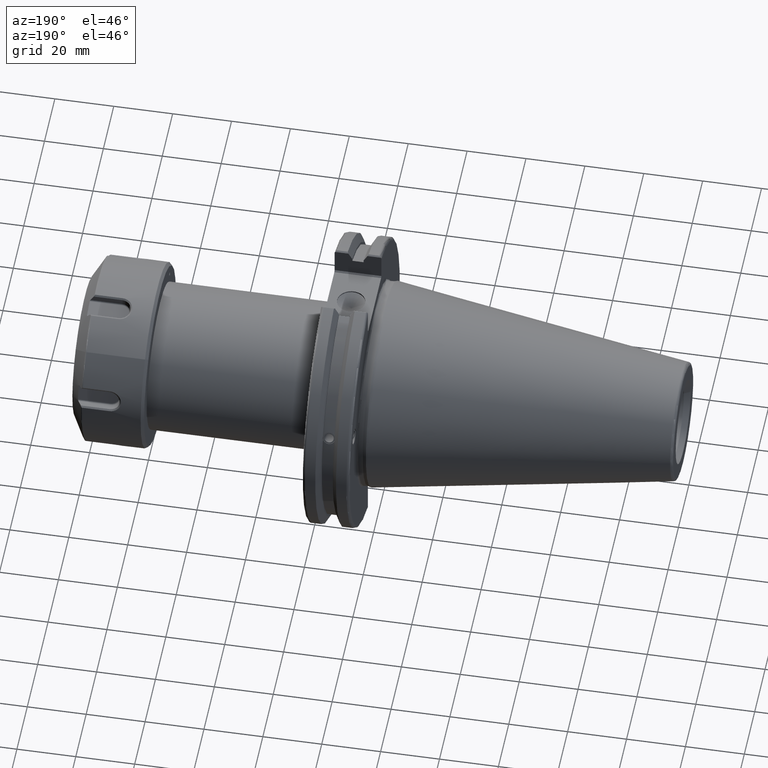
[diagram: clean part render]
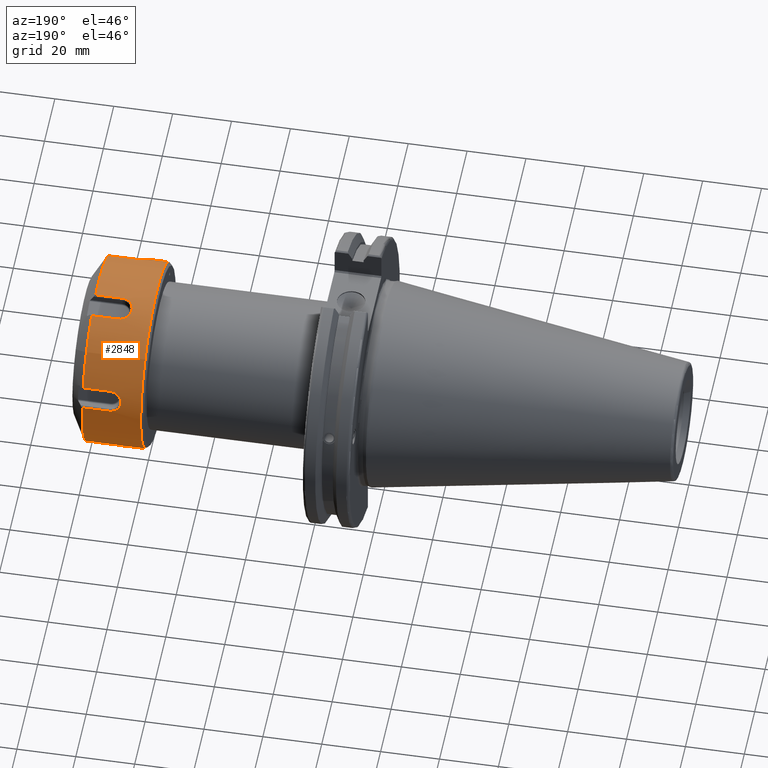
[diagram: same view with one face highlighted and labeled with its STEP entity id]
A machine part, auxiliary view. The second image highlights one B-rep face of the part: STEP entity #2848.
In plain terms, the highlighted cylindrical surface (bore or boss wall) has radius 31.5 mm, axis along (1, 0, 0).
Its self-contained STEP definition (entity closure, byte-faithful):
#210=B_SPLINE_CURVE_WITH_KNOTS('',3,(#5036,#5037,#5038,#5039,#5040,#5041,
#5042,#5043,#5044,#5045,#5046,#5047,#5048,#5049,#5050,#5051,#5052,#5053,
#5054,#5055,#5056,#5057,#5058,#5059,#5060,#5061),.UNSPECIFIED.,.F.,.F.,
(4,2,2,2,2,2,2,2,2,2,2,2,4),(9.99999971371124E-7,0.0790892716498988,0.158925057526417,
0.327320955720377,0.511749066146117,0.603258202720483,0.694520005154169,
0.78577970515199,0.969580047950711,1.06170032889159,1.22792222862123,1.306087413036,
1.38257736498177),.UNSPECIFIED.);
#211=B_SPLINE_CURVE_WITH_KNOTS('',3,(#5069,#5070,#5071,#5072,#5073,#5074,
#5075,#5076,#5077,#5078,#5079,#5080,#5081,#5082,#5083,#5084,#5085,#5086,
#5087,#5088,#5089,#5090,#5091,#5092,#5093,#5094),.UNSPECIFIED.,.F.,.F.,
(4,2,2,2,2,2,2,2,2,2,2,2,4),(9.99999971273979E-7,0.0790859424957346,0.158921752622306,
0.327374722317129,0.511941391695769,0.603518748406338,0.69484873594806,
0.786178380455919,0.970120144784931,1.06230768564658,1.22875398375362,1.30707627294481,
1.38371291360716),.UNSPECIFIED.);
#212=B_SPLINE_CURVE_WITH_KNOTS('',3,(#5102,#5103,#5104,#5105,#5106,#5107,
#5108,#5109,#5110,#5111,#5112,#5113,#5114,#5115,#5116,#5117,#5118,#5119,
#5120,#5121,#5122,#5123,#5124,#5125,#5126,#5127),.UNSPECIFIED.,.F.,.F.,
(4,2,2,2,2,2,2,2,2,2,2,2,4),(9.99999971745824E-7,0.0790910473113207,0.15892409060742,
0.327191213773472,0.511303857617428,0.602656424686424,0.693760203452381,
0.784865759519783,0.96835460341659,1.06031580501585,1.22632949880772,1.30443974777337,
1.38087021878127),.UNSPECIFIED.);
#213=B_SPLINE_CURVE_WITH_KNOTS('',3,(#5135,#5136,#5137,#5138,#5139,#5140,
#5141,#5142,#5143,#5144,#5145,#5146,#5147,#5148,#5149,#5150,#5151,#5152,
#5153,#5154,#5155,#5156,#5157,#5158,#5159,#5160),.UNSPECIFIED.,.F.,.F.,
(4,2,2,2,2,2,2,2,2,2,2,2,4),(9.99999971343368E-7,0.0790892715235611,0.158925057517087,
0.327320960190768,0.511749081388466,0.603258223298337,0.694520031046864,
0.785779736358307,0.969580089940763,1.06170037626348,1.22792229096968,1.30608748469934,
1.38257744559039),.UNSPECIFIED.);
#214=B_SPLINE_CURVE_WITH_KNOTS('',3,(#5168,#5169,#5170,#5171,#5172,#5173,
#5174,#5175,#5176,#5177,#5178,#5179,#5180,#5181,#5182,#5183,#5184,#5185,
#5186,#5187,#5188,#5189,#5190,#5191,#5192,#5193),.UNSPECIFIED.,.F.,.F.,
(4,2,2,2,2,2,2,2,2,2,2,2,4),(9.99999971273979E-7,0.0790859424954708,0.158921752623183,
0.327374722345528,0.511941391788692,0.603518748531299,0.694848736104086,
0.786178380643015,0.970120145037717,1.06230768593157,1.22875398409821,1.3070762733177,
1.38371291400717),.UNSPECIFIED.);
#215=B_SPLINE_CURVE_WITH_KNOTS('',3,(#5201,#5202,#5203,#5204,#5205,#5206,
#5207,#5208,#5209,#5210,#5211,#5212,#5213,#5214,#5215,#5216,#5217,#5218,
#5219,#5220,#5221,#5222,#5223,#5224,#5225,#5226),.UNSPECIFIED.,.F.,.F.,
(4,2,2,2,2,2,2,2,2,2,2,2,4),(9.9999997177358E-7,0.0790910474280395,0.158924090605838,
0.327191209413021,0.511303842778269,0.602656404659507,0.69376017826091,
0.78486572916392,0.96835456256609,1.06031575893471,1.22632943786091,1.304439677498,
1.38087013955283),.UNSPECIFIED.);
#302=CYLINDRICAL_SURFACE('',#3171,31.5);
#407=FACE_OUTER_BOUND('',#597,.T.);
#597=EDGE_LOOP('',(#2328,#2329,#2330,#2331,#2332,#2333,#2334,#2335,#2336,
#2337,#2338,#2339,#2340,#2341,#2342,#2343,#2344,#2345,#2346,#2347,#2348,
#2349,#2350,#2351,#2352,#2353,#2354,#2355));
#777=LINE('',#5030,#953);
#778=LINE('',#5034,#954);
#779=LINE('',#5063,#955);
#780=LINE('',#5067,#956);
#781=LINE('',#5096,#957);
#782=LINE('',#5100,#958);
#783=LINE('',#5129,#959);
#784=LINE('',#5133,#960);
#785=LINE('',#5162,#961);
#786=LINE('',#5166,#962);
#787=LINE('',#5195,#963);
#788=LINE('',#5199,#964);
#789=LINE('',#5227,#965);
#953=VECTOR('',#3741,31.5);
#954=VECTOR('',#3744,9.08119811233);
#955=VECTOR('',#3745,9.081198314838);
#956=VECTOR('',#3748,9.081198109364);
#957=VECTOR('',#3749,9.081198356029);
#958=VECTOR('',#3752,9.081198093953);
#959=VECTOR('',#3753,9.081198366633);
#960=VECTOR('',#3756,9.081198112329);
#961=VECTOR('',#3757,9.081198314838);
#962=VECTOR('',#3760,9.081198109364);
#963=VECTOR('',#3761,9.081198356028);
#964=VECTOR('',#3764,9.081198093954);
#965=VECTOR('',#3765,9.081198366634);
#1112=CIRCLE('',#3170,31.5);
#1113=CIRCLE('',#3172,31.5);
#1114=CIRCLE('',#3173,31.5);
#1115=CIRCLE('',#3174,31.5);
#1116=CIRCLE('',#3175,31.5);
#1117=CIRCLE('',#3176,31.5);
#1118=CIRCLE('',#3177,31.5);
#1119=CIRCLE('',#3178,31.5);
#1319=VERTEX_POINT('',#5023);
#1320=VERTEX_POINT('',#5027);
#1321=VERTEX_POINT('',#5028);
#1322=VERTEX_POINT('',#5031);
#1323=VERTEX_POINT('',#5033);
#1324=VERTEX_POINT('',#5035);
#1325=VERTEX_POINT('',#5062);
#1326=VERTEX_POINT('',#5064);
#1327=VERTEX_POINT('',#5066);
#1328=VERTEX_POINT('',#5068);
#1329=VERTEX_POINT('',#5095);
#1330=VERTEX_POINT('',#5097);
#1331=VERTEX_POINT('',#5099);
#1332=VERTEX_POINT('',#5101);
#1333=VERTEX_POINT('',#5128);
#1334=VERTEX_POINT('',#5130);
#1335=VERTEX_POINT('',#5132);
#1336=VERTEX_POINT('',#5134);
#1337=VERTEX_POINT('',#5161);
#1338=VERTEX_POINT('',#5163);
#1339=VERTEX_POINT('',#5165);
#1340=VERTEX_POINT('',#5167);
#1341=VERTEX_POINT('',#5194);
#1342=VERTEX_POINT('',#5196);
#1343=VERTEX_POINT('',#5198);
#1344=VERTEX_POINT('',#5200);
#1671=EDGE_CURVE('',#1319,#1319,#1112,.T.);
#1673=EDGE_CURVE('',#1320,#1321,#1113,.T.);
#1674=EDGE_CURVE('',#1321,#1319,#777,.T.);
#1675=EDGE_CURVE('',#1321,#1322,#1114,.T.);
#1676=EDGE_CURVE('',#1322,#1323,#778,.T.);
#1677=EDGE_CURVE('',#1323,#1324,#210,.T.);
#1678=EDGE_CURVE('',#1324,#1325,#779,.T.);
#1679=EDGE_CURVE('',#1325,#1326,#1115,.T.);
#1680=EDGE_CURVE('',#1326,#1327,#780,.T.);
#1681=EDGE_CURVE('',#1327,#1328,#211,.T.);
#1682=EDGE_CURVE('',#1328,#1329,#781,.T.);
#1683=EDGE_CURVE('',#1329,#1330,#1116,.T.);
#1684=EDGE_CURVE('',#1330,#1331,#782,.T.);
#1685=EDGE_CURVE('',#1331,#1332,#212,.T.);
#1686=EDGE_CURVE('',#1332,#1333,#783,.T.);
#1687=EDGE_CURVE('',#1333,#1334,#1117,.T.);
#1688=EDGE_CURVE('',#1334,#1335,#784,.T.);
#1689=EDGE_CURVE('',#1335,#1336,#213,.T.);
#1690=EDGE_CURVE('',#1336,#1337,#785,.T.);
#1691=EDGE_CURVE('',#1337,#1338,#1118,.T.);
#1692=EDGE_CURVE('',#1338,#1339,#786,.T.);
#1693=EDGE_CURVE('',#1339,#1340,#214,.T.);
#1694=EDGE_CURVE('',#1340,#1341,#787,.T.);
#1695=EDGE_CURVE('',#1341,#1342,#1119,.T.);
#1696=EDGE_CURVE('',#1342,#1343,#788,.T.);
#1697=EDGE_CURVE('',#1343,#1344,#215,.T.);
#1698=EDGE_CURVE('',#1344,#1320,#789,.T.);
#2328=ORIENTED_EDGE('',*,*,#1673,.T.);
#2329=ORIENTED_EDGE('',*,*,#1674,.T.);
#2330=ORIENTED_EDGE('',*,*,#1671,.F.);
#2331=ORIENTED_EDGE('',*,*,#1674,.F.);
#2332=ORIENTED_EDGE('',*,*,#1675,.T.);
#2333=ORIENTED_EDGE('',*,*,#1676,.T.);
#2334=ORIENTED_EDGE('',*,*,#1677,.T.);
#2335=ORIENTED_EDGE('',*,*,#1678,.T.);
#2336=ORIENTED_EDGE('',*,*,#1679,.T.);
#2337=ORIENTED_EDGE('',*,*,#1680,.T.);
#2338=ORIENTED_EDGE('',*,*,#1681,.T.);
#2339=ORIENTED_EDGE('',*,*,#1682,.T.);
#2340=ORIENTED_EDGE('',*,*,#1683,.T.);
#2341=ORIENTED_EDGE('',*,*,#1684,.T.);
#2342=ORIENTED_EDGE('',*,*,#1685,.T.);
#2343=ORIENTED_EDGE('',*,*,#1686,.T.);
#2344=ORIENTED_EDGE('',*,*,#1687,.T.);
#2345=ORIENTED_EDGE('',*,*,#1688,.T.);
#2346=ORIENTED_EDGE('',*,*,#1689,.T.);
#2347=ORIENTED_EDGE('',*,*,#1690,.T.);
#2348=ORIENTED_EDGE('',*,*,#1691,.T.);
#2349=ORIENTED_EDGE('',*,*,#1692,.T.);
#2350=ORIENTED_EDGE('',*,*,#1693,.T.);
#2351=ORIENTED_EDGE('',*,*,#1694,.T.);
#2352=ORIENTED_EDGE('',*,*,#1695,.T.);
#2353=ORIENTED_EDGE('',*,*,#1696,.T.);
#2354=ORIENTED_EDGE('',*,*,#1697,.T.);
#2355=ORIENTED_EDGE('',*,*,#1698,.T.);
#2848=ADVANCED_FACE('',(#407),#302,.T.);
#3170=AXIS2_PLACEMENT_3D('',#5024,#3734,#3735);
#3171=AXIS2_PLACEMENT_3D('',#5026,#3737,#3738);
#3172=AXIS2_PLACEMENT_3D('',#5029,#3739,#3740);
#3173=AXIS2_PLACEMENT_3D('',#5032,#3742,#3743);
#3174=AXIS2_PLACEMENT_3D('',#5065,#3746,#3747);
#3175=AXIS2_PLACEMENT_3D('',#5098,#3750,#3751);
#3176=AXIS2_PLACEMENT_3D('',#5131,#3754,#3755);
#3177=AXIS2_PLACEMENT_3D('',#5164,#3758,#3759);
#3178=AXIS2_PLACEMENT_3D('',#5197,#3762,#3763);
#3734=DIRECTION('center_axis',(-1.,0.,0.));
#3735=DIRECTION('ref_axis',(0.,0.,1.));
#3737=DIRECTION('center_axis',(1.,0.,0.));
#3738=DIRECTION('ref_axis',(0.,0.,-1.));
#3739=DIRECTION('center_axis',(-1.,0.,0.));
#3740=DIRECTION('ref_axis',(0.,0.,1.));
#3741=DIRECTION('',(-1.,0.,0.));
#3742=DIRECTION('center_axis',(-1.,0.,0.));
#3743=DIRECTION('ref_axis',(0.,0.,1.));
#3744=DIRECTION('',(-1.,-1.174275161315E-10,2.739140781404E-11));
#3745=DIRECTION('',(1.,-1.994409451836E-10,1.997230122054E-10));
#3746=DIRECTION('center_axis',(-1.,0.,0.));
#3747=DIRECTION('ref_axis',(0.,0.605108164293794,0.796143271971192));
#3748=DIRECTION('',(-1.,-3.464612484009E-11,1.144422415862E-10));
#3749=DIRECTION('',(1.,7.968412888578E-11,2.962451916097E-10));
#3750=DIRECTION('center_axis',(-1.,0.,0.));
#3751=DIRECTION('ref_axis',(0.,0.992034380726012,-0.125967406330202));
#3752=DIRECTION('',(-1.,7.625198965719E-11,8.155140709034E-11));
#3753=DIRECTION('',(1.,3.026827548322E-10,8.081826511913E-11));
#3754=DIRECTION('center_axis',(-1.,0.,0.));
#3755=DIRECTION('ref_axis',(0.,0.,-1.));
#3756=DIRECTION('',(-1.,1.174277117397E-10,-2.739219024685E-11));
#3757=DIRECTION('',(1.,1.994448573476E-10,-1.997253595038E-10));
#3758=DIRECTION('center_axis',(-1.,0.,0.));
#3759=DIRECTION('ref_axis',(0.,-0.605108164293794,-0.796143271971192));
#3760=DIRECTION('',(-1.,3.464612484009E-11,-1.144417525657E-10));
#3761=DIRECTION('',(1.,-7.968412888578E-11,-2.962412305437E-10));
#3762=DIRECTION('center_axis',(-1.,0.,0.));
#3763=DIRECTION('ref_axis',(0.,-0.992034380726012,0.125967406330202));
#3764=DIRECTION('',(-1.,-7.625238087359E-11,-8.155179830674E-11));
#3765=DIRECTION('',(1.,-3.02682559224E-10,-8.081865633552E-11));
#5023=CARTESIAN_POINT('',(-11.75,-3.85763741731416E-15,31.5));
#5024=CARTESIAN_POINT('Origin',(-11.75,0.,0.));
#5026=CARTESIAN_POINT('Origin',(-12.75,0.,0.));
#5027=CARTESIAN_POINT('',(8.131197846484,-12.18817581761,29.04648636649));
#5028=CARTESIAN_POINT('',(8.131197846484,-3.85763741731416E-15,31.5));
#5029=CARTESIAN_POINT('Origin',(8.131197846483,0.,0.));
#5030=CARTESIAN_POINT('',(-12.75,-3.85763741731416E-15,31.5));
#5031=CARTESIAN_POINT('',(8.131197846483,12.18817581761,29.04648636649));
#5032=CARTESIAN_POINT('Origin',(8.131197846483,0.,0.));
#5033=CARTESIAN_POINT('',(-0.9500002658466,12.18817581655,29.04648636674));
#5034=CARTESIAN_POINT('',(8.131197846483,12.18817581761,29.04648636649));
#5035=CARTESIAN_POINT('',(-0.950000468355103,19.0609071770652,25.0785130660353));
#5036=CARTESIAN_POINT('Ctrl Pts',(-0.950000265845668,12.188175816443,29.0464863669855));
#5037=CARTESIAN_POINT('Ctrl Pts',(-1.21362519868797,12.1870128064009,29.0469743768153));
#5038=CARTESIAN_POINT('Ctrl Pts',(-1.47796546976369,12.2125518796473,29.036295255382));
#5039=CARTESIAN_POINT('Ctrl Pts',(-1.99685030548064,12.3116355303517,28.9944227492682));
#5040=CARTESIAN_POINT('Ctrl Pts',(-2.25275399080835,12.3859080845004,28.9629132794371));
#5041=CARTESIAN_POINT('Ctrl Pts',(-3.01321395339289,12.6861946011001,28.8333087600027));
#5042=CARTESIAN_POINT('Ctrl Pts',(-3.4341278435859,12.9711421682301,28.7073963789622));
#5043=CARTESIAN_POINT('Ctrl Pts',(-4.12735075909807,13.6158250000896,28.407699877571));
#5044=CARTESIAN_POINT('Ctrl Pts',(-4.41252138711866,14.0093091182578,28.217367192123));
#5045=CARTESIAN_POINT('Ctrl Pts',(-4.70328851462559,14.6478293365974,27.8881310987876));
#5046=CARTESIAN_POINT('Ctrl Pts',(-4.77666915239765,14.8664403553926,27.7723384273213));
#5047=CARTESIAN_POINT('Ctrl Pts',(-4.87449197736086,15.3093981793318,27.5306340894661));
#5048=CARTESIAN_POINT('Ctrl Pts',(-4.89891323838764,15.5328364164902,27.4052343027573));
#5049=CARTESIAN_POINT('Ctrl Pts',(-4.898139633506,15.9773315054023,27.1484944197986));
#5050=CARTESIAN_POINT('Ctrl Pts',(-4.8729473725177,16.1975762409519,27.0176226804015));
#5051=CARTESIAN_POINT('Ctrl Pts',(-4.72354027238092,16.8453964280965,26.6221681579489));
#5052=CARTESIAN_POINT('Ctrl Pts',(-4.52628024404267,17.2504822090507,26.3601504707982));
#5053=CARTESIAN_POINT('Ctrl Pts',(-4.10011576616989,17.7882739427382,25.9975806811522));
#5054=CARTESIAN_POINT('Ctrl Pts',(-3.93739113876241,17.9544261667734,25.8828666837948));
#5055=CARTESIAN_POINT('Ctrl Pts',(-3.42834371787113,18.3788603619017,25.5847388935114));
#5056=CARTESIAN_POINT('Ctrl Pts',(-3.00737606678997,18.630729518983,25.4006919735331));
#5057=CARTESIAN_POINT('Ctrl Pts',(-2.24275294815319,18.8924220830863,25.2058976286535));
#5058=CARTESIAN_POINT('Ctrl Pts',(-1.98650211713794,18.9562917536797,25.157739378785));
#5059=CARTESIAN_POINT('Ctrl Pts',(-1.47129935370272,19.0405094404626,25.094057607202));
#5060=CARTESIAN_POINT('Ctrl Pts',(-1.20991805855335,19.0621905395021,25.0775376469496));
#5061=CARTESIAN_POINT('Ctrl Pts',(-0.950000468350003,19.0609071775661,25.0785130653356));
#5062=CARTESIAN_POINT('',(8.131197846483,19.06090717525,25.07851306709));
#5063=CARTESIAN_POINT('',(-0.9500004683551,19.06090717707,25.07851306528));
#5064=CARTESIAN_POINT('',(8.131197846483,31.24908299287,3.967973299401));
#5065=CARTESIAN_POINT('Origin',(8.131197846483,0.,0.));
#5066=CARTESIAN_POINT('',(-0.9500002628806,31.24908299255,3.967973300441));
#5067=CARTESIAN_POINT('',(8.131197846483,31.24908299287,3.967973299401));
#5068=CARTESIAN_POINT('',(-0.950000509544297,31.2490829928567,-3.96797330167737));
#5069=CARTESIAN_POINT('Ctrl Pts',(-0.950000262879701,31.2490829927109,3.96797330064941));
#5070=CARTESIAN_POINT('Ctrl Pts',(-1.21361408378754,31.2489237308088,3.96922754003533));
#5071=CARTESIAN_POINT('Ctrl Pts',(-1.47794723167736,31.2524448754583,3.94177048297789));
#5072=CARTESIAN_POINT('Ctrl Pts',(-1.99682243327953,31.2657235703223,3.83502927291653));
#5073=CARTESIAN_POINT('Ctrl Pts',(-2.25273018405956,31.2755718116931,3.75495302114547));
#5074=CARTESIAN_POINT('Ctrl Pts',(-3.01336917944148,31.3134824307878,3.43002583915111));
#5075=CARTESIAN_POINT('Ctrl Pts',(-3.43424894343992,31.346916721714,3.12023342754349));
#5076=CARTESIAN_POINT('Ctrl Pts',(-4.1273502558744,31.4097021303278,2.41220210727794));
#5077=CARTESIAN_POINT('Ctrl Pts',(-4.41252312280046,31.4416115550909,1.97626473304394));
#5078=CARTESIAN_POINT('Ctrl Pts',(-4.70329176231404,31.4757450632558,1.25866359773412));
#5079=CARTESIAN_POINT('Ctrl Pts',(-4.77667203342635,31.484771142411,1.01144305359159));
#5080=CARTESIAN_POINT('Ctrl Pts',(-4.87449391815872,31.496927812941,0.506976243953119));
#5081=CARTESIAN_POINT('Ctrl Pts',(-4.89891419521393,31.5000474197005,0.250773682763775));
#5082=CARTESIAN_POINT('Ctrl Pts',(-4.89813862906856,31.4999514801379,-0.262547400390706));
#5083=CARTESIAN_POINT('Ctrl Pts',(-4.87294445775288,31.4967353450874,-0.518726143881628));
#5084=CARTESIAN_POINT('Ctrl Pts',(-4.72352763554708,31.4781705879226,-1.27750056852511));
#5085=CARTESIAN_POINT('Ctrl Pts',(-4.52626002050399,31.4537986874375,-1.75932640200566));
#5086=CARTESIAN_POINT('Ctrl Pts',(-4.10007097654521,31.4086978242726,-2.40636477755229));
#5087=CARTESIAN_POINT('Ctrl Pts',(-3.93733849327786,31.39242789931,-2.60761913733855));
#5088=CARTESIAN_POINT('Ctrl Pts',(-3.42806483672139,31.34643922963,-3.12446136732194));
#5089=CARTESIAN_POINT('Ctrl Pts',(-3.00703665129195,31.3129922948295,-3.4344849488277));
#5090=CARTESIAN_POINT('Ctrl Pts',(-2.24272822830868,31.2751574469451,-3.75837927384774));
#5091=CARTESIAN_POINT('Ctrl Pts',(-1.98646799157163,31.265386014489,-3.8377708200033));
#5092=CARTESIAN_POINT('Ctrl Pts',(-1.4712697983266,31.2523458479587,-3.9425379202748));
#5093=CARTESIAN_POINT('Ctrl Pts',(-1.2099023621048,31.2488801145866,-3.96957103199963));
#5094=CARTESIAN_POINT('Ctrl Pts',(-0.950000509538744,31.2490829924719,-3.96797330253152));
#5095=CARTESIAN_POINT('',(8.131197846484,31.24908299287,-3.967973299401));
#5096=CARTESIAN_POINT('',(-0.9500005095443,31.24908299215,-3.967973302091));
#5097=CARTESIAN_POINT('',(8.131197846483,19.06090717525,-25.07851306709));
#5098=CARTESIAN_POINT('Origin',(8.131197846483,0.,0.));
#5099=CARTESIAN_POINT('',(-0.9500002474705,19.06090717595,-25.07851306635));
#5100=CARTESIAN_POINT('',(8.131197846483,19.06090717525,-25.07851306709));
#5101=CARTESIAN_POINT('',(-0.950000520149492,12.1881758155968,-29.046486367644));
#5102=CARTESIAN_POINT('Ctrl Pts',(-0.95000024746967,19.0609071761911,-25.0785130663807));
#5103=CARTESIAN_POINT('Ctrl Pts',(-1.21363112731532,19.0619066846472,-25.0777533906434));
#5104=CARTESIAN_POINT('Ctrl Pts',(-1.47797031623294,19.0398912148497,-25.0945294455045));
#5105=CARTESIAN_POINT('Ctrl Pts',(-1.9968512854243,18.9540892711901,-25.1594002225257));
#5106=CARTESIAN_POINT('Ctrl Pts',(-2.25273984551552,18.8896695916079,-25.2079639497157));
#5107=CARTESIAN_POINT('Ctrl Pts',(-3.01279556444951,18.6274267352811,-25.4031124996523));
#5108=CARTESIAN_POINT('Ctrl Pts',(-3.4338043008695,18.3760342203521,-25.5868466365339));
#5109=CARTESIAN_POINT('Ctrl Pts',(-4.12734449597029,17.7938845283833,-25.9954953095909));
#5110=CARTESIAN_POINT('Ctrl Pts',(-4.41252172722364,17.4323024057387,-26.2411011467668));
#5111=CARTESIAN_POINT('Ctrl Pts',(-4.70329062588843,16.8279111570734,-26.6294605149167));
#5112=CARTESIAN_POINT('Ctrl Pts',(-4.77667004258101,16.6183272113748,-26.7608862102806));
#5113=CARTESIAN_POINT('Ctrl Pts',(-4.87449112363996,16.187532293151,-27.0236430025212));
#5114=CARTESIAN_POINT('Ctrl Pts',(-4.89891226998315,15.9672201488802,-27.1544425805937));
#5115=CARTESIAN_POINT('Ctrl Pts',(-4.89814063540062,15.5226307723194,-27.4110161727348));
#5116=CARTESIAN_POINT('Ctrl Pts',(-4.87294838087672,15.2991650667019,-27.5363207791703));
#5117=CARTESIAN_POINT('Ctrl Pts',(-4.72353962806411,14.6327712101742,-27.8996278075145));
#5118=CARTESIAN_POINT('Ctrl Pts',(-4.52627931724213,14.2033151471166,-28.1194330884207));
#5119=CARTESIAN_POINT('Ctrl Pts',(-4.10010493292785,13.6204165567169,-28.4038930998124));
#5120=CARTESIAN_POINT('Ctrl Pts',(-3.93737687857951,13.4379902862919,-28.4904304000657));
#5121=CARTESIAN_POINT('Ctrl Pts',(-3.42816357859319,12.9674391164842,-28.7090056064307));
#5122=CARTESIAN_POINT('Ctrl Pts',(-3.00715400919483,12.6821985430033,-28.8350659736418));
#5123=CARTESIAN_POINT('Ctrl Pts',(-2.24277395660763,12.3827413654595,-28.9642642857084));
#5124=CARTESIAN_POINT('Ctrl Pts',(-1.98650744692543,12.3090957052744,-28.9954998376213));
#5125=CARTESIAN_POINT('Ctrl Pts',(-1.47129252739541,12.2118367815394,-29.0365936218965));
#5126=CARTESIAN_POINT('Ctrl Pts',(-1.20991363069961,12.1866900915435,-29.0471097909707));
#5127=CARTESIAN_POINT('Ctrl Pts',(-0.950000520143784,12.1881758146395,-29.0464863677423));
#5128=CARTESIAN_POINT('',(8.131197846484,12.18817581761,-29.04648636649));
#5129=CARTESIAN_POINT('',(-0.9500005201495,12.18817581487,-29.04648636723));
#5130=CARTESIAN_POINT('',(8.131197846483,-12.18817581761,-29.04648636649));
#5131=CARTESIAN_POINT('Origin',(8.131197846483,0.,0.));
#5132=CARTESIAN_POINT('',(-0.9500002658462,-12.18817581655,-29.04648636674));
#5133=CARTESIAN_POINT('',(8.131197846483,-12.18817581761,-29.04648636649));
#5134=CARTESIAN_POINT('',(-0.950000468354595,-19.0609071770653,-25.0785130660343));
#5135=CARTESIAN_POINT('Ctrl Pts',(-0.950000265845267,-12.1881758164428,
-29.0464863669856));
#5136=CARTESIAN_POINT('Ctrl Pts',(-1.21362519826527,-12.187012806176,-29.0469743769097));
#5137=CARTESIAN_POINT('Ctrl Pts',(-1.47796546923109,-12.2125518795109,-29.0362952554392));
#5138=CARTESIAN_POINT('Ctrl Pts',(-1.99685030496977,-12.3116355302436,-28.9944227493143));
#5139=CARTESIAN_POINT('Ctrl Pts',(-2.25275399095424,-12.3859080845852,-28.9629132794015));
#5140=CARTESIAN_POINT('Ctrl Pts',(-3.01321396773228,-12.6861946067839,-28.8333087575476));
#5141=CARTESIAN_POINT('Ctrl Pts',(-3.43412785502186,-12.9711421786835,-28.7073963741143));
#5142=CARTESIAN_POINT('Ctrl Pts',(-4.12735076006668,-13.6158250012174,-28.407699877034));
#5143=CARTESIAN_POINT('Ctrl Pts',(-4.41252138786037,-14.0093091194194,-28.2173671915484));
#5144=CARTESIAN_POINT('Ctrl Pts',(-4.70328851510753,-14.6478293378853,-27.8881310981114));
#5145=CARTESIAN_POINT('Ctrl Pts',(-4.77666915278461,-14.8664403566972,-27.7723384266231));
#5146=CARTESIAN_POINT('Ctrl Pts',(-4.87449197755199,-15.3093981806418,-27.5306340887377));
#5147=CARTESIAN_POINT('Ctrl Pts',(-4.89891323848085,-15.5328364177844,-27.4052343020233));
#5148=CARTESIAN_POINT('Ctrl Pts',(-4.89813963340843,-15.9773315066441,-27.1484944190673));
#5149=CARTESIAN_POINT('Ctrl Pts',(-4.87294737232821,-16.1975762421606,-27.0176226796765));
#5150=CARTESIAN_POINT('Ctrl Pts',(-4.7235402719012,-16.8453964293843,-26.6221681571369));
#5151=CARTESIAN_POINT('Ctrl Pts',(-4.52628024338468,-17.2504822102069,-26.3601504700434));
#5152=CARTESIAN_POINT('Ctrl Pts',(-4.10011576502289,-17.7882739439721,-25.997580680308));
#5153=CARTESIAN_POINT('Ctrl Pts',(-3.9373911373611,-17.9544261681667,-25.8828666828286));
#5154=CARTESIAN_POINT('Ctrl Pts',(-3.42834370540407,-18.3788603720238,-25.584738886379));
#5155=CARTESIAN_POINT('Ctrl Pts',(-3.00737605116032,-18.630729524422,-25.4006919694881));
#5156=CARTESIAN_POINT('Ctrl Pts',(-2.2427529471204,-18.8924220834424,-25.2058976283868));
#5157=CARTESIAN_POINT('Ctrl Pts',(-1.98650211600533,-18.9562917539639,-25.1577393785706));
#5158=CARTESIAN_POINT('Ctrl Pts',(-1.4712993527876,-19.0405094404911,-25.09405760718));
#5159=CARTESIAN_POINT('Ctrl Pts',(-1.20991805811567,-19.0621905394137,-25.0775376470168));
#5160=CARTESIAN_POINT('Ctrl Pts',(-0.950000468349472,-19.0609071775697,
-25.0785130653329));
#5161=CARTESIAN_POINT('',(8.131197846484,-19.06090717525,-25.07851306709));
#5162=CARTESIAN_POINT('',(-0.9500004683546,-19.06090717707,-25.07851306528));
#5163=CARTESIAN_POINT('',(8.131197846483,-31.24908299287,-3.967973299401));
#5164=CARTESIAN_POINT('Origin',(8.131197846483,0.,0.));
#5165=CARTESIAN_POINT('',(-0.9500002628806,-31.24908299255,-3.967973300441));
#5166=CARTESIAN_POINT('',(8.131197846483,-31.24908299287,-3.967973299401));
#5167=CARTESIAN_POINT('',(-0.950000509544297,-31.2490829928567,3.96797330167735));
#5168=CARTESIAN_POINT('Ctrl Pts',(-0.950000262879699,-31.2490829927108,
-3.96797330064981));
#5169=CARTESIAN_POINT('Ctrl Pts',(-1.21361408378666,-31.2489237308086,-3.96922754003683));
#5170=CARTESIAN_POINT('Ctrl Pts',(-1.47794723167673,-31.2524448754583,-3.94177048297826));
#5171=CARTESIAN_POINT('Ctrl Pts',(-1.99682243327997,-31.2657235703224,-3.83502927291591));
#5172=CARTESIAN_POINT('Ctrl Pts',(-2.25273018406442,-31.2755718116934,-3.75495302114332));
#5173=CARTESIAN_POINT('Ctrl Pts',(-3.01336917953253,-31.3134824307924,-3.43002583911131));
#5174=CARTESIAN_POINT('Ctrl Pts',(-3.43424894351337,-31.3469167217205,-3.12023342747082));
#5175=CARTESIAN_POINT('Ctrl Pts',(-4.1273502558826,-31.4097021303287,-2.41220210726697));
#5176=CARTESIAN_POINT('Ctrl Pts',(-4.41252312280691,-31.4416115550916,-1.97626473303327));
#5177=CARTESIAN_POINT('Ctrl Pts',(-4.70329176231804,-31.4757450632562,-1.25866359772345));
#5178=CARTESIAN_POINT('Ctrl Pts',(-4.77667203342954,-31.4847711424113,-1.01144305358095));
#5179=CARTESIAN_POINT('Ctrl Pts',(-4.87449391815985,-31.4969278129411,-0.506976243945263));
#5180=CARTESIAN_POINT('Ctrl Pts',(-4.89891419521484,-31.5000474197007,-0.250773682755751));
#5181=CARTESIAN_POINT('Ctrl Pts',(-4.89813862906806,-31.499951480138,0.262547400399126));
#5182=CARTESIAN_POINT('Ctrl Pts',(-4.87294445775118,-31.4967353450872,0.518726143890173));
#5183=CARTESIAN_POINT('Ctrl Pts',(-4.72352763554394,-31.4781705879223,1.27750056853354));
#5184=CARTESIAN_POINT('Ctrl Pts',(-4.52626002049976,-31.453798687437,1.759326402014));
#5185=CARTESIAN_POINT('Ctrl Pts',(-4.10007097653513,-31.4086978242717,2.4063647775634));
#5186=CARTESIAN_POINT('Ctrl Pts',(-3.93733849326588,-31.392427899309,2.60761913735064));
#5187=CARTESIAN_POINT('Ctrl Pts',(-3.42806483670178,-31.3464392296285,3.12446136733742));
#5188=CARTESIAN_POINT('Ctrl Pts',(-3.00703665126471,-31.3129922948277,3.43448494884378));
#5189=CARTESIAN_POINT('Ctrl Pts',(-2.24272822828817,-31.2751574469442,3.75837927385565));
#5190=CARTESIAN_POINT('Ctrl Pts',(-1.98646799155284,-31.2653860144884,3.83777082000839));
#5191=CARTESIAN_POINT('Ctrl Pts',(-1.47126979831567,-31.2523458479586,3.9425379202754));
#5192=CARTESIAN_POINT('Ctrl Pts',(-1.20990236209962,-31.2488801145867,3.96957103199896));
#5193=CARTESIAN_POINT('Ctrl Pts',(-0.950000509538747,-31.2490829924719,
3.96797330253136));
#5194=CARTESIAN_POINT('',(8.131197846484,-31.24908299287,3.967973299401));
#5195=CARTESIAN_POINT('',(-0.9500005095443,-31.24908299215,3.967973302091));
#5196=CARTESIAN_POINT('',(8.131197846483,-19.06090717525,25.07851306709));
#5197=CARTESIAN_POINT('Origin',(8.131197846483,0.,0.));
#5198=CARTESIAN_POINT('',(-0.9500002474708,-19.06090717595,25.07851306635));
#5199=CARTESIAN_POINT('',(8.131197846483,-19.06090717525,25.07851306709));
#5200=CARTESIAN_POINT('',(-0.950000520150192,-12.1881758155968,29.046486367644));
#5201=CARTESIAN_POINT('Ctrl Pts',(-0.950000247469945,-19.0609071761951,
25.0785130663776));
#5202=CARTESIAN_POINT('Ctrl Pts',(-1.21363112770581,-19.0619066844594,25.0777533907861));
#5203=CARTESIAN_POINT('Ctrl Pts',(-1.47797031671127,-19.0398912147404,25.0945294455875));
#5204=CARTESIAN_POINT('Ctrl Pts',(-1.9968512858499,-18.9540892711181,25.1594002225797));
#5205=CARTESIAN_POINT('Ctrl Pts',(-2.25273984528868,-18.8896695917075,25.2079639496403));
#5206=CARTESIAN_POINT('Ctrl Pts',(-3.01279555040093,-18.6274267401688,25.4031124960178));
#5207=CARTESIAN_POINT('Ctrl Pts',(-3.43380428965452,-18.3760342295889,25.5868466300366));
#5208=CARTESIAN_POINT('Ctrl Pts',(-4.1273444949651,-17.7938845294472,25.9954953088587));
#5209=CARTESIAN_POINT('Ctrl Pts',(-4.41252172645771,-17.4323024068514,26.2411011460255));
#5210=CARTESIAN_POINT('Ctrl Pts',(-4.70329062539602,-16.8279111583269,26.6294605141243));
#5211=CARTESIAN_POINT('Ctrl Pts',(-4.77667004218772,-16.618327212649,26.7608862094893));
#5212=CARTESIAN_POINT('Ctrl Pts',(-4.8744911234514,-16.1875322944357,27.0236430017517));
#5213=CARTESIAN_POINT('Ctrl Pts',(-4.89891226988689,-15.9672201501876,27.1544425798222));
#5214=CARTESIAN_POINT('Ctrl Pts',(-4.89814063550496,-15.5226307736577,27.4110161719743));
#5215=CARTESIAN_POINT('Ctrl Pts',(-4.87294838108888,-15.2991650680493,27.5363207784222));
#5216=CARTESIAN_POINT('Ctrl Pts',(-4.72353962858423,-14.6327712116284,27.8996278067491));
#5217=CARTESIAN_POINT('Ctrl Pts',(-4.52627931794917,-14.2033151484488,28.119433087746));
#5218=CARTESIAN_POINT('Ctrl Pts',(-4.10010493415743,-13.6204165581616,28.4038930991197));
#5219=CARTESIAN_POINT('Ctrl Pts',(-3.93737688007156,-13.4379902879186,28.4904303992983));
#5220=CARTESIAN_POINT('Ctrl Pts',(-3.42816359149061,-12.9674391280951,28.7090056010587));
#5221=CARTESIAN_POINT('Ctrl Pts',(-3.00715402534767,-12.6821985494341,28.8350659708639));
#5222=CARTESIAN_POINT('Ctrl Pts',(-2.24277395773357,-12.3827413658884,28.9642642855249));
#5223=CARTESIAN_POINT('Ctrl Pts',(-1.98650744814368,-12.3090957056139,28.9954998374774));
#5224=CARTESIAN_POINT('Ctrl Pts',(-1.4712925283648,-12.2118367815695,29.0365936218842));
#5225=CARTESIAN_POINT('Ctrl Pts',(-1.20991363116411,-12.1866900914334,29.0471097910169));
#5226=CARTESIAN_POINT('Ctrl Pts',(-0.950000520144481,-12.1881758146394,
29.0464863677423));
#5227=CARTESIAN_POINT('',(-0.9500005201502,-12.18817581487,29.04648636723));